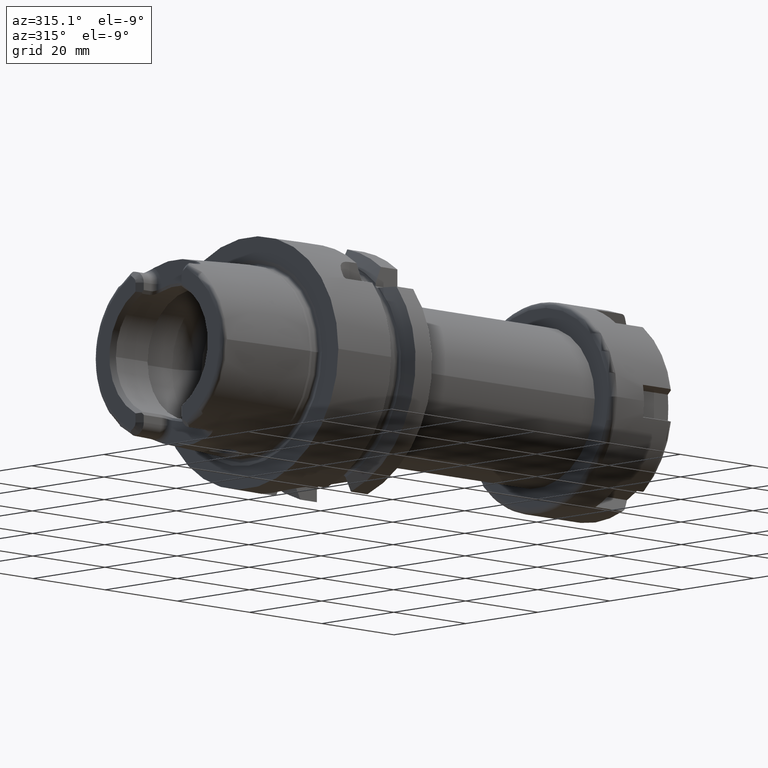
[diagram: clean part render]
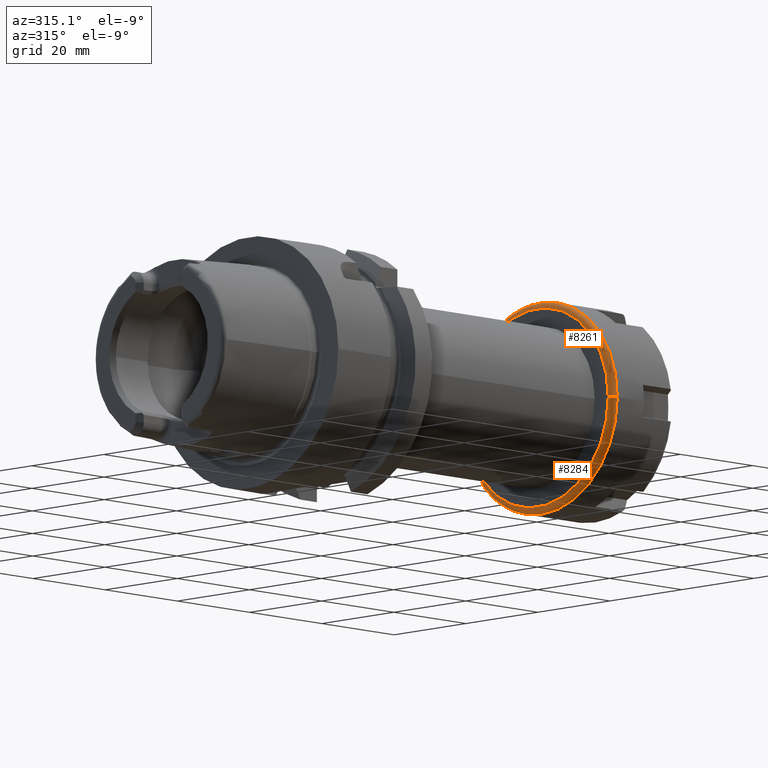
[diagram: same view with one multi-face feature highlighted, each face labeled with its STEP entity id]
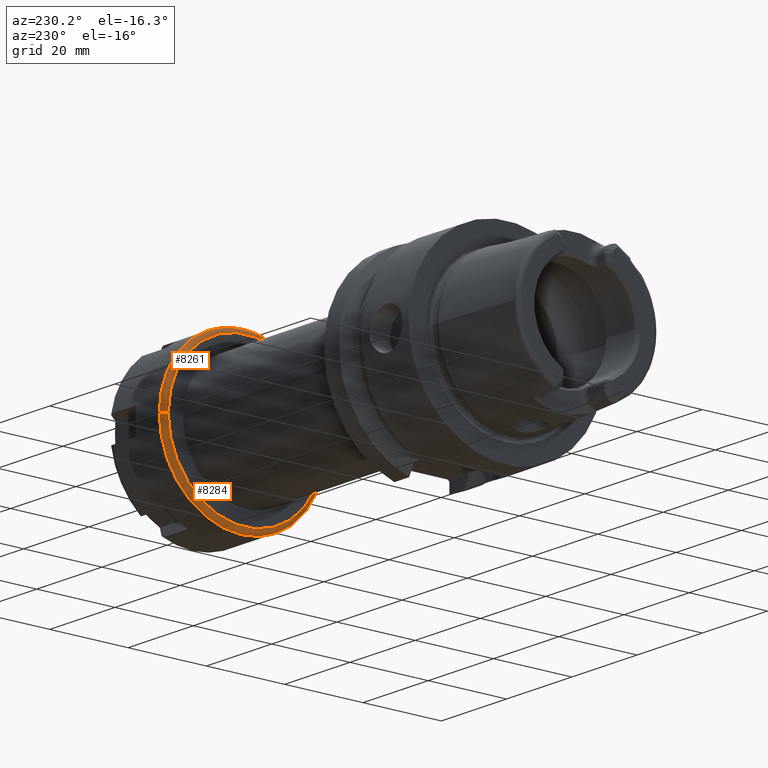
[diagram: same view with one multi-face feature highlighted, each face labeled with its STEP entity id]
A machine part, auxiliary view. The highlighted faces form ONE feature: a constant-radius fillet chain: 2 tangent blend faces with common blend radius 1.25 mm. The faces share edges in the B-rep.
A second angle (auxiliary view) of the same feature is appended — it is thin or edge-on in the first view.
Their STEP definitions:
[1] entity #8284 (Torus):
#7171=CARTESIAN_POINT('',(1.25E0,0.E0,0.E0));
#7172=DIRECTION('',(-1.E0,0.E0,0.E0));
#7173=DIRECTION('',(0.E0,1.E0,0.E0));
#7174=AXIS2_PLACEMENT_3D('',#7171,#7172,#7173);
#7311=CARTESIAN_POINT('',(1.25E0,-1.975E1,0.E0));
#7312=DIRECTION('',(0.E0,0.E0,1.E0));
#7313=DIRECTION('',(-1.E0,0.E0,0.E0));
#7314=AXIS2_PLACEMENT_3D('',#7311,#7312,#7313);
#7316=CARTESIAN_POINT('',(-2.331468351713E-14,0.E0,0.E0));
#7317=DIRECTION('',(-1.E0,0.E0,0.E0));
#7318=DIRECTION('',(0.E0,1.E0,0.E0));
#7319=AXIS2_PLACEMENT_3D('',#7316,#7317,#7318);
#7326=CARTESIAN_POINT('',(1.25E0,1.975E1,1.124100812433E-14));
#7327=DIRECTION('',(0.E0,0.E0,-1.E0));
#7328=DIRECTION('',(-1.E0,0.E0,0.E0));
#7329=AXIS2_PLACEMENT_3D('',#7326,#7327,#7328);
#7520=CARTESIAN_POINT('',(0.E0,1.975E1,0.E0));
#7521=CARTESIAN_POINT('',(-4.569356216284E-14,-1.975E1,0.E0));
#7522=VERTEX_POINT('',#7520);
#7523=VERTEX_POINT('',#7521);
#7524=CARTESIAN_POINT('',(1.25E0,2.1E1,0.E0));
#7525=CARTESIAN_POINT('',(1.25E0,-2.1E1,0.E0));
#7526=VERTEX_POINT('',#7524);
#7527=VERTEX_POINT('',#7525);
#8273=CARTESIAN_POINT('',(1.25E0,0.E0,0.E0));
#8274=DIRECTION('',(1.E0,0.E0,0.E0));
#8275=DIRECTION('',(0.E0,9.999459026577E-1,1.040152671667E-2));
#8276=AXIS2_PLACEMENT_3D('',#8273,#8274,#8275);
#8277=TOROIDAL_SURFACE('',#8276,1.975E1,1.25E0);
#8278=ORIENTED_EDGE('',*,*,#8267,.T.);
#8279=ORIENTED_EDGE('',*,*,#8257,.T.);
#8280=ORIENTED_EDGE('',*,*,#8090,.F.);
#8281=ORIENTED_EDGE('',*,*,#8254,.F.);
#8282=EDGE_LOOP('',(#8278,#8279,#8280,#8281));
#8283=FACE_OUTER_BOUND('',#8282,.F.);
#8284=ADVANCED_FACE('',(#8283),#8277,.T.);
#7175=CIRCLE('',#7174,2.1E1);
#7315=CIRCLE('',#7314,1.25E0);
#7320=CIRCLE('',#7319,1.975E1);
#7330=CIRCLE('',#7329,1.25E0);
#8090=EDGE_CURVE('',#7526,#7527,#7175,.T.);
#8254=EDGE_CURVE('',#7522,#7526,#7330,.T.);
#8257=EDGE_CURVE('',#7523,#7527,#7315,.T.);
#8267=EDGE_CURVE('',#7522,#7523,#7320,.T.);
[2] entity #8261 (Torus):
#7267=CARTESIAN_POINT('',(1.25E0,0.E0,0.E0));
#7268=DIRECTION('',(-1.E0,0.E0,0.E0));
#7269=DIRECTION('',(0.E0,-1.E0,0.E0));
#7270=AXIS2_PLACEMENT_3D('',#7267,#7268,#7269);
#7311=CARTESIAN_POINT('',(1.25E0,-1.975E1,0.E0));
#7312=DIRECTION('',(0.E0,0.E0,1.E0));
#7313=DIRECTION('',(-1.E0,0.E0,0.E0));
#7314=AXIS2_PLACEMENT_3D('',#7311,#7312,#7313);
#7321=CARTESIAN_POINT('',(-2.420286193683E-14,0.E0,0.E0));
#7322=DIRECTION('',(-1.E0,0.E0,0.E0));
#7323=DIRECTION('',(0.E0,-1.E0,0.E0));
#7324=AXIS2_PLACEMENT_3D('',#7321,#7322,#7323);
#7326=CARTESIAN_POINT('',(1.25E0,1.975E1,1.124100812433E-14));
#7327=DIRECTION('',(0.E0,0.E0,-1.E0));
#7328=DIRECTION('',(-1.E0,0.E0,0.E0));
#7329=AXIS2_PLACEMENT_3D('',#7326,#7327,#7328);
#7520=CARTESIAN_POINT('',(0.E0,1.975E1,0.E0));
#7521=CARTESIAN_POINT('',(-4.569356216284E-14,-1.975E1,0.E0));
#7522=VERTEX_POINT('',#7520);
#7523=VERTEX_POINT('',#7521);
#7524=CARTESIAN_POINT('',(1.25E0,2.1E1,0.E0));
#7525=CARTESIAN_POINT('',(1.25E0,-2.1E1,0.E0));
#7526=VERTEX_POINT('',#7524);
#7527=VERTEX_POINT('',#7525);
#8247=CARTESIAN_POINT('',(1.25E0,0.E0,0.E0));
#8248=DIRECTION('',(1.E0,0.E0,0.E0));
#8249=DIRECTION('',(0.E0,-9.999459026577E-1,-1.040152671667E-2));
#8250=AXIS2_PLACEMENT_3D('',#8247,#8248,#8249);
#8251=TOROIDAL_SURFACE('',#8250,1.975E1,1.25E0);
#8253=ORIENTED_EDGE('',*,*,#8252,.T.);
#8255=ORIENTED_EDGE('',*,*,#8254,.T.);
#8256=ORIENTED_EDGE('',*,*,#8211,.F.);
#8258=ORIENTED_EDGE('',*,*,#8257,.F.);
#8259=EDGE_LOOP('',(#8253,#8255,#8256,#8258));
#8260=FACE_OUTER_BOUND('',#8259,.F.);
#8261=ADVANCED_FACE('',(#8260),#8251,.T.);
#7271=CIRCLE('',#7270,2.1E1);
#7315=CIRCLE('',#7314,1.25E0);
#7325=CIRCLE('',#7324,1.975E1);
#7330=CIRCLE('',#7329,1.25E0);
#8211=EDGE_CURVE('',#7527,#7526,#7271,.T.);
#8252=EDGE_CURVE('',#7523,#7522,#7325,.T.);
#8254=EDGE_CURVE('',#7522,#7526,#7330,.T.);
#8257=EDGE_CURVE('',#7523,#7527,#7315,.T.);